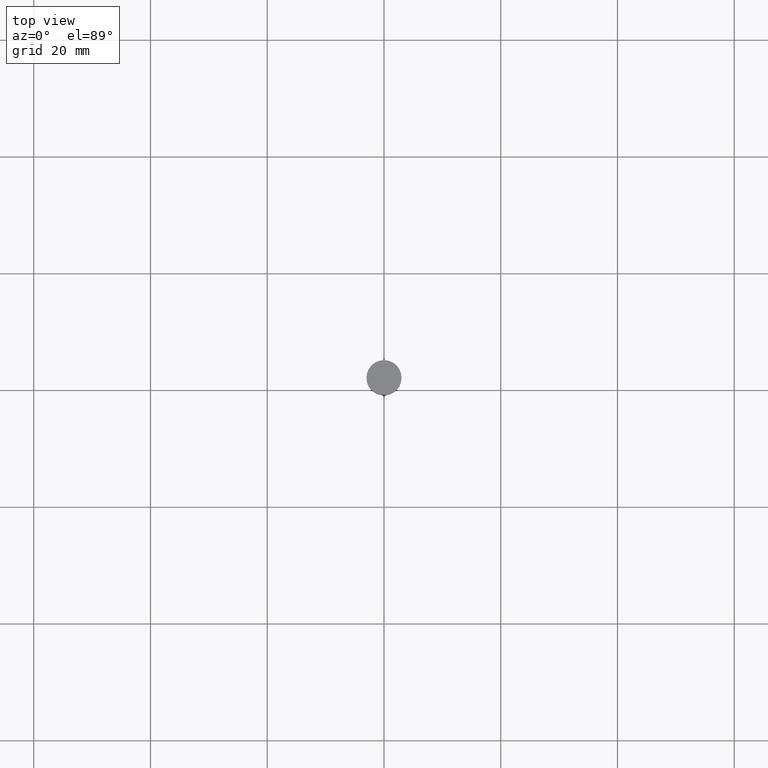
[diagram: clean part render]
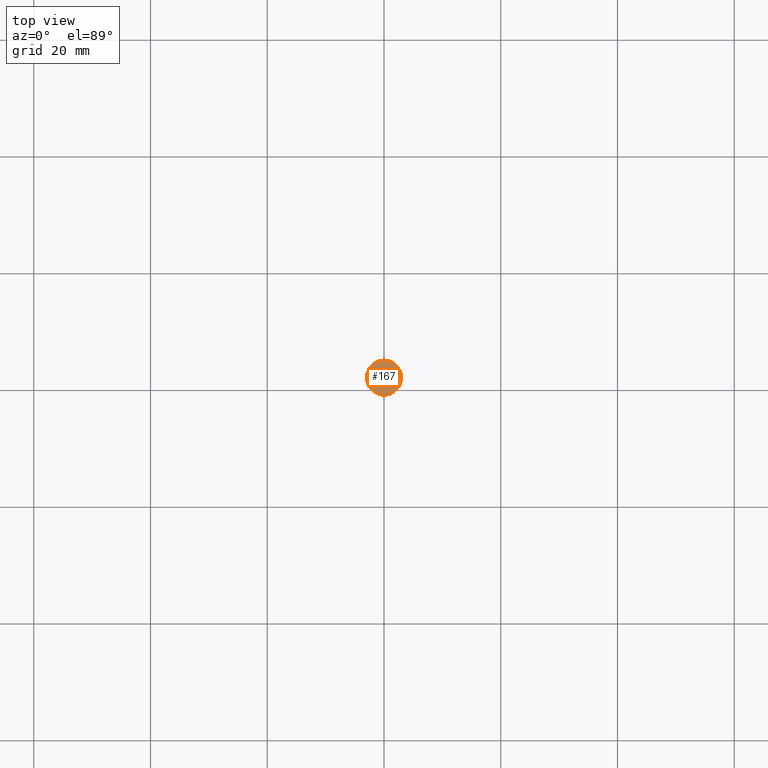
[diagram: same view with one face highlighted and labeled with its STEP entity id]
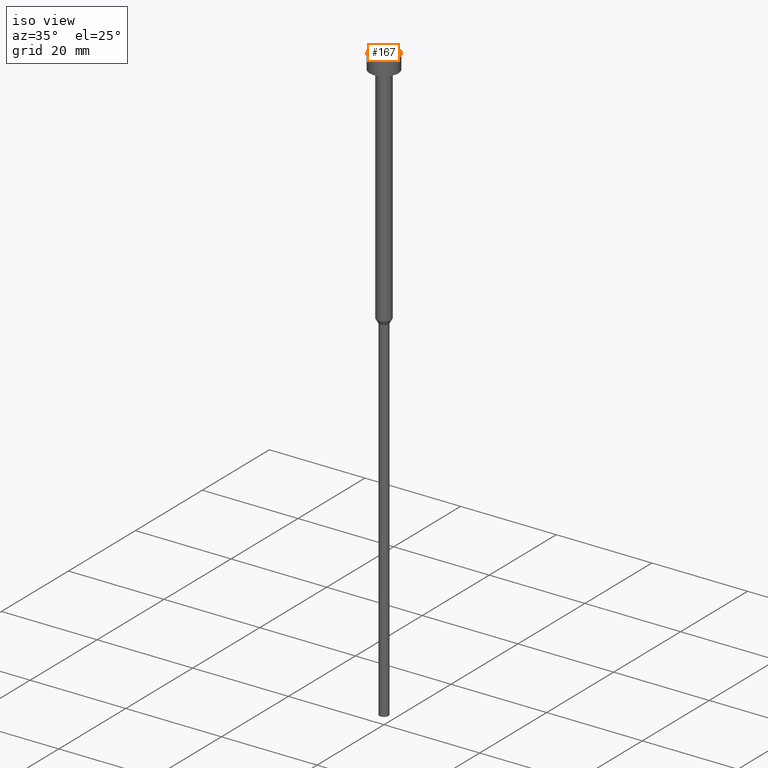
[diagram: same view with one face highlighted and labeled with its STEP entity id]
A machine part, top view. The second image highlights one B-rep face of the part: STEP entity #167.
A second angle (iso view) of the same face is appended — the face is thin or edge-on in the first view.
In plain terms, the highlighted planar face has unit normal (0, -0, 1).
Its self-contained STEP definition (entity closure, byte-faithful):
#22 = CARTESIAN_POINT ( 'NONE',  ( 0.000000000000000000, 0.000000000000000000, -3.673940397442059868E-16 ) ) ;
#28 = DIRECTION ( 'NONE',  ( 1.000000000000000000, 0.000000000000000000, 0.000000000000000000 ) ) ;
#50 = AXIS2_PLACEMENT_3D ( 'NONE', #196, #55, #28 ) ;
#55 = DIRECTION ( 'NONE',  ( 0.000000000000000000, -0.000000000000000000, 1.000000000000000000 ) ) ;
#59 = CIRCLE ( 'NONE', #352, 3.000000000000000000 ) ;
#72 = EDGE_LOOP ( 'NONE', ( #211, #344 ) ) ;
#95 = VERTEX_POINT ( 'NONE', #293 ) ;
#120 = DIRECTION ( 'NONE',  ( 1.000000000000000000, 0.000000000000000000, 0.000000000000000000 ) ) ;
#138 = VERTEX_POINT ( 'NONE', #335 ) ;
#152 = DIRECTION ( 'NONE',  ( -0.000000000000000000, -0.000000000000000000, 1.000000000000000000 ) ) ;
#167 = ADVANCED_FACE ( 'NONE', ( #355 ), #201, .T. ) ;
#196 = CARTESIAN_POINT ( 'NONE',  ( 0.000000000000000000, 0.000000000000000000, -1.836970198721029934E-16 ) ) ;
#201 = PLANE ( 'NONE',  #50 ) ;
#204 = DIRECTION ( 'NONE',  ( -0.000000000000000000, -0.000000000000000000, 1.000000000000000000 ) ) ;
#211 = ORIENTED_EDGE ( 'NONE', *, *, #268, .T. ) ;
#237 = CIRCLE ( 'NONE', #265, 3.000000000000000000 ) ;
#238 = CARTESIAN_POINT ( 'NONE',  ( 0.000000000000000000, 0.000000000000000000, -3.673940397442059868E-16 ) ) ;
#248 = EDGE_CURVE ( 'NONE', #95, #138, #59, .T. ) ;
#265 = AXIS2_PLACEMENT_3D ( 'NONE', #238, #204, #309 ) ;
#268 = EDGE_CURVE ( 'NONE', #138, #95, #237, .T. ) ;
#293 = CARTESIAN_POINT ( 'NONE',  ( -3.000000000000000000, 3.673940397442059868E-16, -3.673940397442059868E-16 ) ) ;
#309 = DIRECTION ( 'NONE',  ( 1.000000000000000000, 0.000000000000000000, 0.000000000000000000 ) ) ;
#335 = CARTESIAN_POINT ( 'NONE',  ( 3.000000000000000000, 0.000000000000000000, -3.673940397442059868E-16 ) ) ;
#344 = ORIENTED_EDGE ( 'NONE', *, *, #248, .T. ) ;
#352 = AXIS2_PLACEMENT_3D ( 'NONE', #22, #152, #120 ) ;
#355 = FACE_OUTER_BOUND ( 'NONE', #72, .T. ) ;